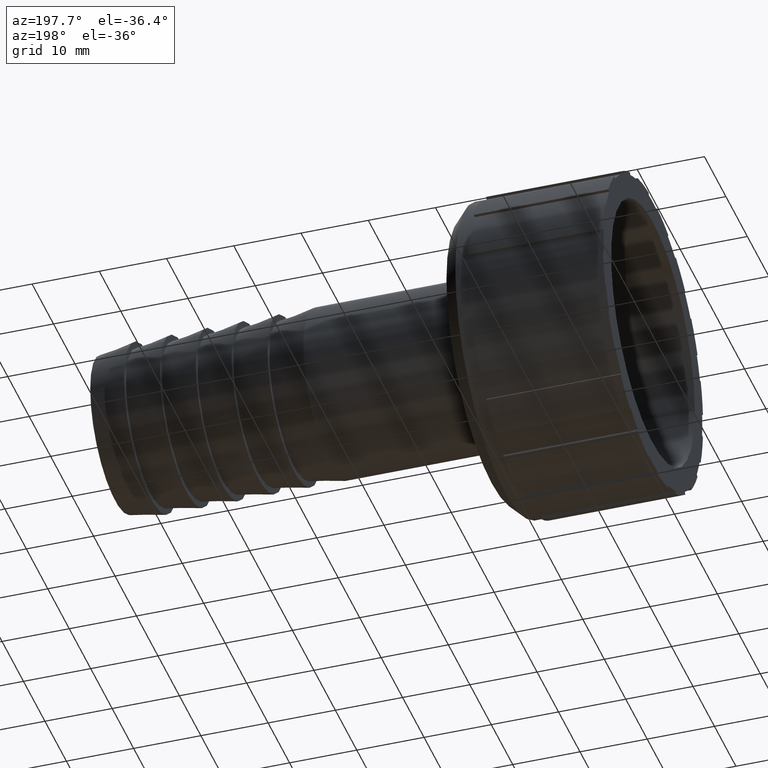
[diagram: clean part render]
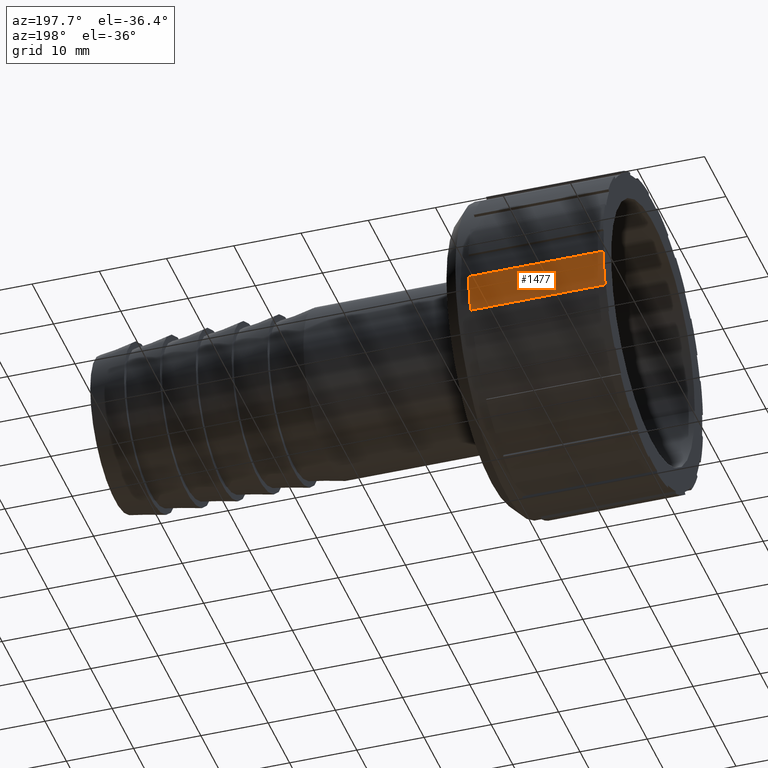
[diagram: same view with one face highlighted and labeled with its STEP entity id]
A machine part, auxiliary view. The second image highlights one B-rep face of the part: STEP entity #1477.
In plain terms, the highlighted cylindrical surface (partial cylindrical patch) has radius 23.3712 mm, axis along (-1, 0, 0).
Its self-contained STEP definition (entity closure, byte-faithful):
#26=CYLINDRICAL_SURFACE('',#1628,23.3712);
#73=CIRCLE('',#1554,23.3712);
#103=CIRCLE('',#1589,23.3712);
#196=FACE_OUTER_BOUND('',#281,.T.);
#281=EDGE_LOOP('',(#1212,#1213,#1214,#1215));
#418=LINE('',#2338,#546);
#424=LINE('',#2350,#552);
#546=VECTOR('',#1810,20.);
#552=VECTOR('',#1818,20.);
#673=VERTEX_POINT('',#2334);
#675=VERTEX_POINT('',#2337);
#678=VERTEX_POINT('',#2344);
#680=VERTEX_POINT('',#2348);
#821=EDGE_CURVE('',#675,#673,#418,.T.);
#827=EDGE_CURVE('',#678,#680,#424,.T.);
#869=EDGE_CURVE('',#678,#673,#73,.T.);
#900=EDGE_CURVE('',#680,#675,#103,.T.);
#1212=ORIENTED_EDGE('',*,*,#821,.T.);
#1213=ORIENTED_EDGE('',*,*,#869,.F.);
#1214=ORIENTED_EDGE('',*,*,#827,.T.);
#1215=ORIENTED_EDGE('',*,*,#900,.T.);
#1477=ADVANCED_FACE('',(#196),#26,.T.);
#1554=AXIS2_PLACEMENT_3D('',#2432,#1887,#1888);
#1589=AXIS2_PLACEMENT_3D('',#2471,#1958,#1959);
#1628=AXIS2_PLACEMENT_3D('',#2514,#2038,#2039);
#1810=DIRECTION('',(-1.,0.,0.));
#1818=DIRECTION('',(1.,0.,0.));
#1887=DIRECTION('center_axis',(-1.,0.,0.));
#1888=DIRECTION('ref_axis',(0.,0.,1.));
#1958=DIRECTION('center_axis',(-1.,0.,0.));
#1959=DIRECTION('ref_axis',(0.,0.,1.));
#2038=DIRECTION('center_axis',(-1.,0.,0.));
#2039=DIRECTION('ref_axis',(0.,-1.,0.));
#2334=CARTESIAN_POINT('',(0.,22.2623841439662,-7.11331439390109));
#2337=CARTESIAN_POINT('',(20.,22.2623841439662,-7.11331439390109));
#2338=CARTESIAN_POINT('',(10.,22.2623841439662,-7.11331439390109));
#2344=CARTESIAN_POINT('',(0.,23.2899086232643,-1.94759999999999));
#2348=CARTESIAN_POINT('',(20.,23.2899086232643,-1.94759999999999));
#2350=CARTESIAN_POINT('',(10.,23.2899086232643,-1.94759999999999));
#2432=CARTESIAN_POINT('Origin',(0.,0.,0.));
#2471=CARTESIAN_POINT('Origin',(20.,0.,0.));
#2514=CARTESIAN_POINT('Origin',(10.,0.,0.));